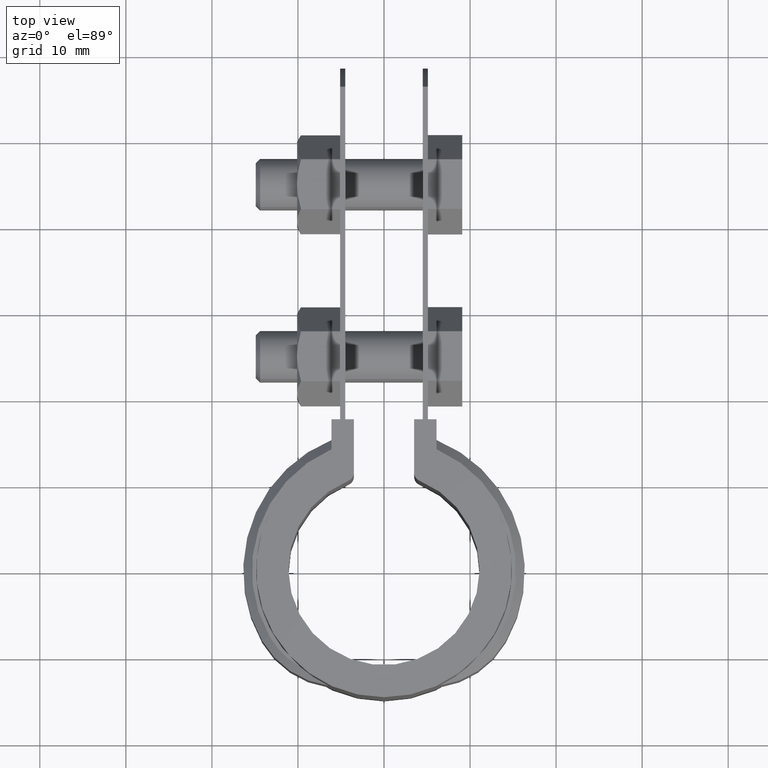
[diagram: clean part render]
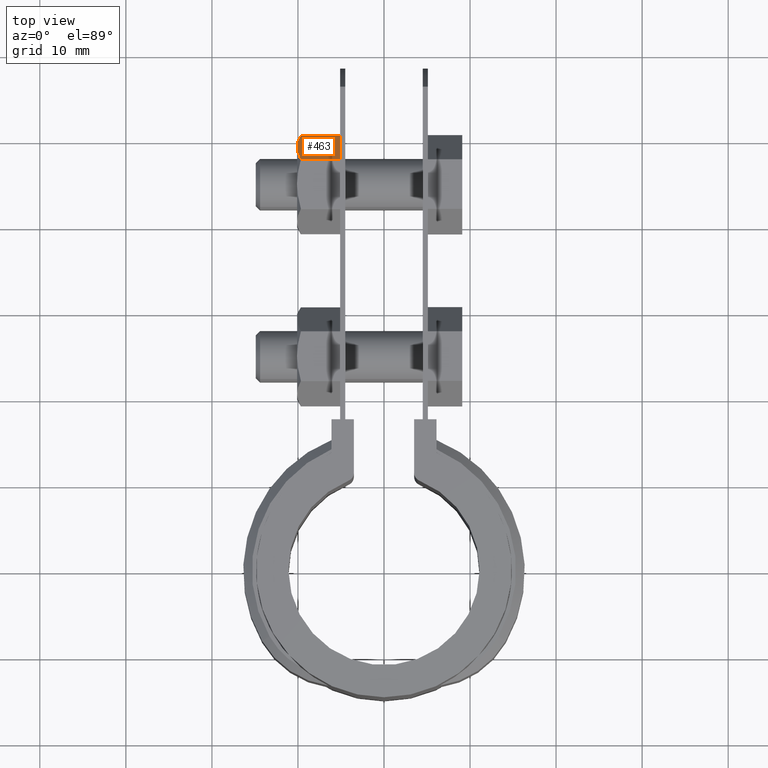
[diagram: same view with one face highlighted and labeled with its STEP entity id]
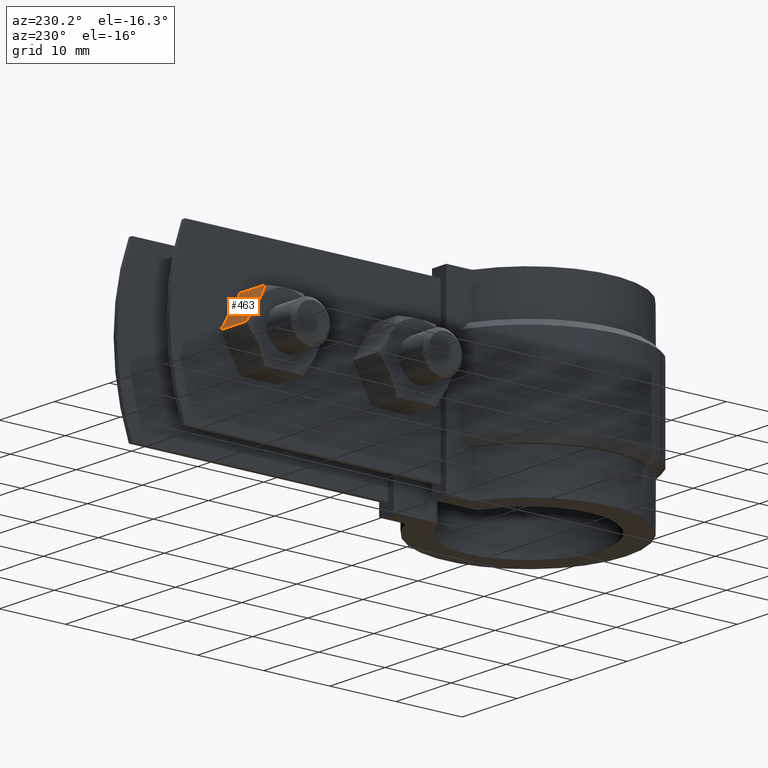
[diagram: same view with one face highlighted and labeled with its STEP entity id]
A machine part, top view. The second image highlights one B-rep face of the part: STEP entity #463.
A second angle (auxiliary view) of the same face is appended — the face is thin or edge-on in the first view.
In plain terms, the highlighted planar face has unit normal (0, -0.866, -0.5).
Its self-contained STEP definition (entity closure, byte-faithful):
#463 = ADVANCED_FACE( '', ( #820 ), #821, .F. );
#820 = FACE_OUTER_BOUND( '', #1606, .T. );
#821 = PLANE( '', #1607 );
#1606 = EDGE_LOOP( '', ( #3864, #3865, #3866, #3867, #3868 ) );
#1607 = AXIS2_PLACEMENT_3D( '', #3869, #3870, #3871 );
#3864 = ORIENTED_EDGE( '', *, *, #4559, .F. );
#3865 = ORIENTED_EDGE( '', *, *, #4564, .F. );
#3866 = ORIENTED_EDGE( '', *, *, #4558, .F. );
#3867 = ORIENTED_EDGE( '', *, *, #4555, .F. );
#3868 = ORIENTED_EDGE( '', *, *, #4565, .F. );
#3869 = CARTESIAN_POINT( '', ( -5.10000000000001, 50.7315173541316, -12.5000000000000 ) );
#3870 = DIRECTION( '', ( 0.000000000000000, -0.866025403784439, -0.500000000000000 ) );
#3871 = DIRECTION( '', ( 0.000000000000000, 0.500000000000000, -0.866025403784439 ) );
#4555 = EDGE_CURVE( '', #5331, #5313, #5333, .T. );
#4558 = EDGE_CURVE( '', #5313, #5334, #5338, .F. );
#4559 = EDGE_CURVE( '', #5291, #5339, #5340, .T. );
#4564 = EDGE_CURVE( '', #5334, #5291, #5346, .T. );
#4565 = EDGE_CURVE( '', #5339, #5331, #5347, .T. );
#5291 = VERTEX_POINT( '', #7651 );
#5313 = VERTEX_POINT( '', #7686 );
#5331 = VERTEX_POINT( '', #7708 );
#5333 = LINE( '', #7710, #7711 );
#5334 = VERTEX_POINT( '', #7712 );
#5338 = LINE( '', #7717, #7718 );
#5339 = VERTEX_POINT( '', #7719 );
#5340 = B_SPLINE_CURVE_WITH_KNOTS( '', 3, ( #7720, #7721, #7722, #7723, #7724, #7725, #7726, #7727 ), .UNSPECIFIED., .F., .F., ( 4, 2, 2, 4 ), ( 0.00287277010488787, 0.00358771851305255, 0.00430266692121723, 0.00573256373754661 ), .UNSPECIFIED. );
#5346 = B_SPLINE_CURVE_WITH_KNOTS( '', 3, ( #7742, #7743, #7744, #7745 ), .UNSPECIFIED., .F., .F., ( 4, 4 ), ( 7.22330826800938E-007, 0.00287277010488787 ), .UNSPECIFIED. );
#5347 = LINE( '', #7746, #7747 );
#7651 = CARTESIAN_POINT( '', ( -10.1000000000000, 49.2881416811576, -10.0000000000000 ) );
#7686 = CARTESIAN_POINT( '', ( -5.10000000000001, 47.8684145947075, -7.54096055338677 ) );
#7708 = CARTESIAN_POINT( '', ( -5.10000000000001, 50.7078687676077, -12.4590394466133 ) );
#7710 = CARTESIAN_POINT( '', ( -5.10000000000001, 50.7256416811576, -12.4898230358803 ) );
#7711 = VECTOR( '', #8485, 1000.00000000000 );
#7712 = CARTESIAN_POINT( '', ( -9.66698729810779, 47.8684145947075, -7.54096055338677 ) );
#7717 = CARTESIAN_POINT( '', ( -5.10000000000001, 47.8684145947075, -7.54096055338677 ) );
#7718 = VECTOR( '', #8490, 1000.00000000000 );
#7719 = CARTESIAN_POINT( '', ( -9.66698729810779, 50.7078687676077, -12.4590394466133 ) );
#7720 = CARTESIAN_POINT( '', ( -10.1000000000000, 49.2881416811576, -10.0000000000000 ) );
#7721 = CARTESIAN_POINT( '', ( -10.1000000000000, 49.4084531605031, -10.2083855949603 ) );
#7722 = CARTESIAN_POINT( '', ( -10.0898108720832, 49.5294598162573, -10.4179752707804 ) );
#7723 = CARTESIAN_POINT( '', ( -10.0502996398893, 49.7688680347125, -10.8326424688945 ) );
#7724 = CARTESIAN_POINT( '', ( -10.0210226875360, 49.8877846226712, -11.0386120411017 ) );
#7725 = CARTESIAN_POINT( '', ( -9.90799451667573, 50.2424502861646, -11.6529109899724 ) );
#7726 = CARTESIAN_POINT( '', ( -9.79913188755703, 50.4761223664733, -12.0576429053774 ) );
#7727 = CARTESIAN_POINT( '', ( -9.66698729810779, 50.7078687676077, -12.4590394466133 ) );
#7742 = CARTESIAN_POINT( '', ( -9.66698729810779, 47.8684145947075, -7.54096055338678 ) );
#7743 = CARTESIAN_POINT( '', ( -9.93203573458747, 48.3332389324760, -8.34605992299638 ) );
#7744 = CARTESIAN_POINT( '', ( -10.1000000000000, 48.8048336375249, -9.16288591272157 ) );
#7745 = CARTESIAN_POINT( '', ( -10.1000000000000, 49.2881416811576, -10.0000000000000 ) );
#7746 = CARTESIAN_POINT( '', ( -5.10000000000001, 50.7078687676077, -12.4590394466133 ) );
#7747 = VECTOR( '', #8495, 1000.00000000000 );
#8485 = DIRECTION( '', ( 0.000000000000000, -0.500000000000000, 0.866025403784439 ) );
#8490 = DIRECTION( '', ( 1.00000000000000, 0.000000000000000, 0.000000000000000 ) );
#8495 = DIRECTION( '', ( 1.00000000000000, 0.000000000000000, 0.000000000000000 ) );